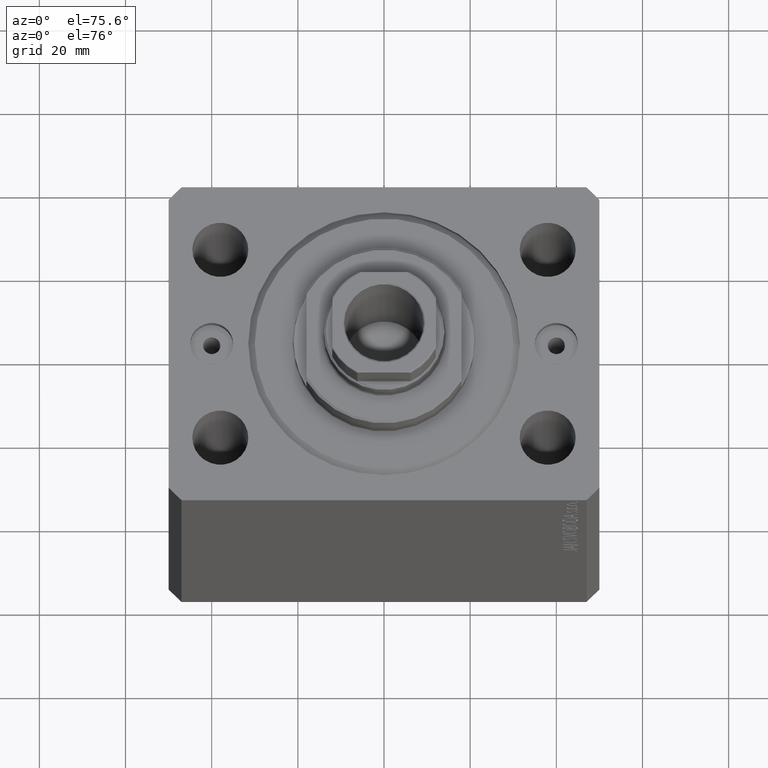
[diagram: clean part render]
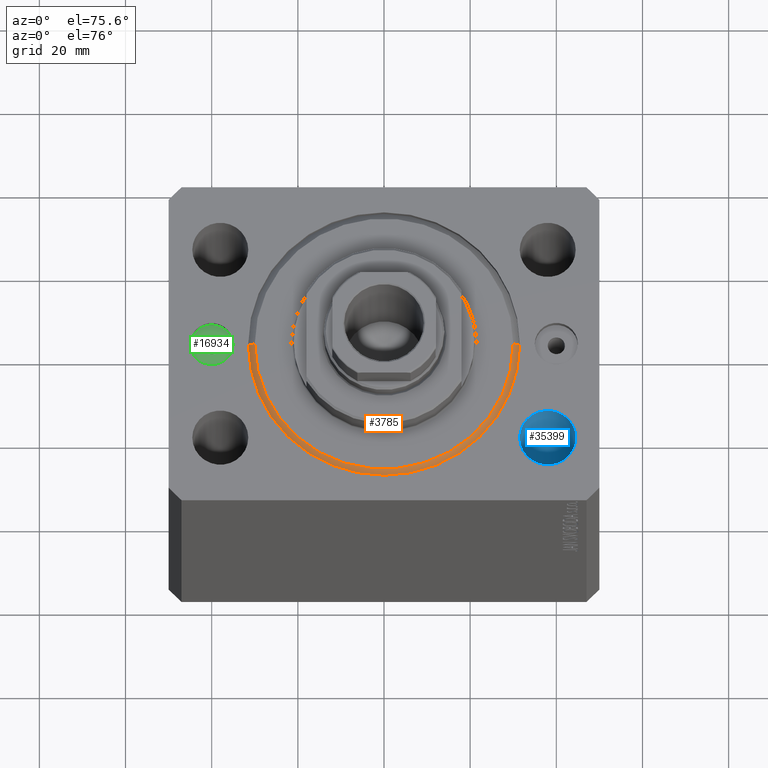
[diagram: same view with three faces highlighted in distinct colors, each labeled with its STEP entity id]
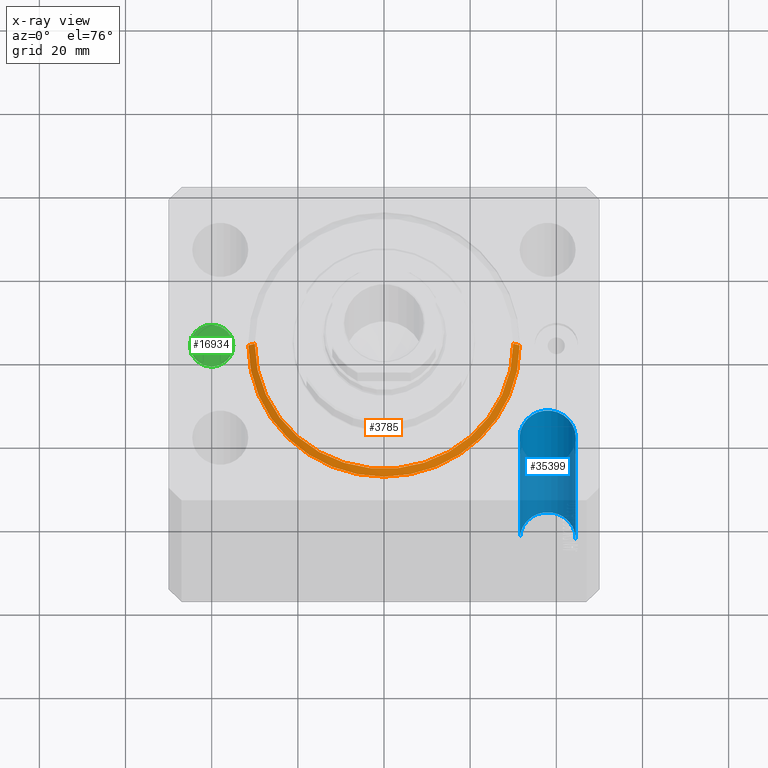
[diagram: x-ray of the same camera — body ghosted, the three highlighted faces saturated]
A machine part, auxiliary view with three faces highlighted in distinct colors.
The next image is the same camera in x-ray (body ghosted, the three faces saturated) — at least one of them is partly hidden behind the body in this view.
Their STEP definitions:

[orange] entity #3785 — the highlighted conical surface has half-angle 45 deg.
#422 = ORIENTED_EDGE ( 'NONE', *, *, #22882, .F. ) ;
#2426 = CARTESIAN_POINT ( 'NONE',  ( -31.50000000000000000, 3.857637417314162689E-15, 1.499999999999980460 ) ) ;
#3160 = VECTOR ( 'NONE', #11714, 1000.000000000000114 ) ;
#3760 = ORIENTED_EDGE ( 'NONE', *, *, #12518, .F. ) ;
#3785 = ADVANCED_FACE ( 'NONE', ( #37047 ), #31326, .T. ) ;
#4183 = DIRECTION ( 'NONE',  ( 1.000000000000000000, 0.000000000000000000, 0.000000000000000000 ) ) ;
#5551 = ORIENTED_EDGE ( 'NONE', *, *, #43586, .T. ) ;
#6010 = DIRECTION ( 'NONE',  ( 1.000000000000000000, 0.000000000000000000, 0.000000000000000000 ) ) ;
#6246 = CARTESIAN_POINT ( 'NONE',  ( 0.000000000000000000, 0.000000000000000000, 1.499999999999980460 ) ) ;
#6724 = VERTEX_POINT ( 'NONE', #18816 ) ;
#8728 = CARTESIAN_POINT ( 'NONE',  ( 30.00000000000002132, 0.000000000000000000, 0.000000000000000000 ) ) ;
#10468 = VERTEX_POINT ( 'NONE', #41654 ) ;
#11714 = DIRECTION ( 'NONE',  ( -0.7071067811865474617, 8.659560562354932858E-17, 0.7071067811865474617 ) ) ;
#11925 = AXIS2_PLACEMENT_3D ( 'NONE', #6246, #19960, #6010 ) ;
#12518 = EDGE_CURVE ( 'NONE', #13081, #6724, #39325, .T. ) ;
#13081 = VERTEX_POINT ( 'NONE', #8728 ) ;
#15137 = DIRECTION ( 'NONE',  ( 0.7071067811865474617, 0.000000000000000000, 0.7071067811865474617 ) ) ;
#18816 = CARTESIAN_POINT ( 'NONE',  ( -30.00000000000002132, 3.765788907378112117E-15, 0.000000000000000000 ) ) ;
#19960 = DIRECTION ( 'NONE',  ( -0.000000000000000000, -0.000000000000000000, 1.000000000000000000 ) ) ;
#20731 = ORIENTED_EDGE ( 'NONE', *, *, #32777, .F. ) ;
#21201 = CARTESIAN_POINT ( 'NONE',  ( -31.50000000000000000, 0.000000000000000000, 1.499999999999980460 ) ) ;
#21278 = VECTOR ( 'NONE', #15137, 1000.000000000000114 ) ;
#21727 = DIRECTION ( 'NONE',  ( 1.000000000000000000, 0.000000000000000000, 0.000000000000000000 ) ) ;
#21886 = LINE ( 'NONE', #35584, #21278 ) ;
#22882 = EDGE_CURVE ( 'NONE', #36184, #10468, #32309, .T. ) ;
#25538 = CARTESIAN_POINT ( 'NONE',  ( 0.000000000000000000, 0.000000000000000000, 0.000000000000000000 ) ) ;
#30836 = EDGE_LOOP ( 'NONE', ( #20731, #3760, #5551, #422 ) ) ;
#30860 = AXIS2_PLACEMENT_3D ( 'NONE', #34983, #38804, #4183 ) ;
#31326 = CONICAL_SURFACE ( 'NONE', #11925, 31.50000000000000000, 0.7853981633974482790 ) ;
#32309 = CIRCLE ( 'NONE', #30860, 31.50000000000000000 ) ;
#32777 = EDGE_CURVE ( 'NONE', #6724, #36184, #38915, .T. ) ;
#33591 = AXIS2_PLACEMENT_3D ( 'NONE', #25538, #39923, #21727 ) ;
#34983 = CARTESIAN_POINT ( 'NONE',  ( 0.000000000000000000, 0.000000000000000000, 1.499999999999980460 ) ) ;
#35584 = CARTESIAN_POINT ( 'NONE',  ( 31.50000000000000000, 0.000000000000000000, 1.499999999999980460 ) ) ;
#36184 = VERTEX_POINT ( 'NONE', #21201 ) ;
#37047 = FACE_OUTER_BOUND ( 'NONE', #30836, .T. ) ;
#38804 = DIRECTION ( 'NONE',  ( -0.000000000000000000, -0.000000000000000000, 1.000000000000000000 ) ) ;
#38915 = LINE ( 'NONE', #2426, #3160 ) ;
#39325 = CIRCLE ( 'NONE', #33591, 30.00000000000002132 ) ;
#39923 = DIRECTION ( 'NONE',  ( -0.000000000000000000, -0.000000000000000000, -1.000000000000000000 ) ) ;
#41654 = CARTESIAN_POINT ( 'NONE',  ( 31.50000000000000000, 3.857637417314162689E-15, 1.499999999999980460 ) ) ;
#43586 = EDGE_CURVE ( 'NONE', #13081, #10468, #21886, .T. ) ;

[blue] entity #35399 — the highlighted cylindrical surface (edge-blend (fillet) strip) has radius 6.5 mm, axis along (0, 0, 1).
#1184 = CIRCLE ( 'NONE', #30620, 6.499999999999999112 ) ;
#1559 = VERTEX_POINT ( 'NONE', #7904 ) ;
#3877 = EDGE_LOOP ( 'NONE', ( #28713, #16787, #30373, #10967 ) ) ;
#3878 = CYLINDRICAL_SURFACE ( 'NONE', #11266, 6.499999999999999112 ) ;
#3943 = EDGE_CURVE ( 'NONE', #1559, #40953, #34336, .T. ) ;
#7904 = CARTESIAN_POINT ( 'NONE',  ( 31.49999999999999289, -22.50000000000000000, -95.00000000000000000 ) ) ;
#8724 = DIRECTION ( 'NONE',  ( 0.000000000000000000, 0.000000000000000000, 1.000000000000000000 ) ) ;
#9173 = DIRECTION ( 'NONE',  ( 1.000000000000000000, 0.000000000000000000, 0.000000000000000000 ) ) ;
#9424 = DIRECTION ( 'NONE',  ( -0.000000000000000000, -0.000000000000000000, -1.000000000000000000 ) ) ;
#10967 = ORIENTED_EDGE ( 'NONE', *, *, #43805, .T. ) ;
#11266 = AXIS2_PLACEMENT_3D ( 'NONE', #24582, #14883, #31771 ) ;
#11757 = EDGE_CURVE ( 'NONE', #1559, #43203, #32862, .T. ) ;
#12807 = DIRECTION ( 'NONE',  ( 1.000000000000000000, 0.000000000000000000, 0.000000000000000000 ) ) ;
#13471 = AXIS2_PLACEMENT_3D ( 'NONE', #33042, #9424, #12807 ) ;
#14883 = DIRECTION ( 'NONE',  ( -0.000000000000000000, -0.000000000000000000, 1.000000000000000000 ) ) ;
#15585 = LINE ( 'NONE', #29303, #33071 ) ;
#16363 = CARTESIAN_POINT ( 'NONE',  ( 44.49999999999999289, -22.50000000000000000, -95.00000000000000000 ) ) ;
#16787 = ORIENTED_EDGE ( 'NONE', *, *, #11757, .T. ) ;
#17253 = DIRECTION ( 'NONE',  ( -0.000000000000000000, -0.000000000000000000, 1.000000000000000000 ) ) ;
#24582 = CARTESIAN_POINT ( 'NONE',  ( 37.99999999999999289, -22.50000000000000000, -113.3847763108502278 ) ) ;
#24877 = VECTOR ( 'NONE', #17253, 1000.000000000000000 ) ;
#25559 = EDGE_CURVE ( 'NONE', #43203, #30991, #15585, .T. ) ;
#25932 = DIRECTION ( 'NONE',  ( -0.000000000000000000, -0.000000000000000000, 1.000000000000000000 ) ) ;
#28713 = ORIENTED_EDGE ( 'NONE', *, *, #3943, .F. ) ;
#29303 = CARTESIAN_POINT ( 'NONE',  ( 44.49999999999999289, -22.50000000000000000, -113.3847763108502278 ) ) ;
#30373 = ORIENTED_EDGE ( 'NONE', *, *, #25559, .T. ) ;
#30620 = AXIS2_PLACEMENT_3D ( 'NONE', #33014, #8724, #9173 ) ;
#30984 = CARTESIAN_POINT ( 'NONE',  ( 31.49999999999999289, -22.50000000000000000, 0.000000000000000000 ) ) ;
#30991 = VERTEX_POINT ( 'NONE', #35225 ) ;
#31183 = CARTESIAN_POINT ( 'NONE',  ( 31.49999999999999289, -22.50000000000000000, -113.3847763108502278 ) ) ;
#31771 = DIRECTION ( 'NONE',  ( 1.000000000000000000, 0.000000000000000000, 0.000000000000000000 ) ) ;
#32862 = CIRCLE ( 'NONE', #13471, 6.499999999999999112 ) ;
#33014 = CARTESIAN_POINT ( 'NONE',  ( 37.99999999999999289, -22.50000000000000000, 0.000000000000000000 ) ) ;
#33042 = CARTESIAN_POINT ( 'NONE',  ( 37.99999999999999289, -22.50000000000000000, -95.00000000000000000 ) ) ;
#33071 = VECTOR ( 'NONE', #25932, 1000.000000000000000 ) ;
#34336 = LINE ( 'NONE', #31183, #24877 ) ;
#35225 = CARTESIAN_POINT ( 'NONE',  ( 44.49999999999999289, -22.50000000000000000, 0.000000000000000000 ) ) ;
#35336 = FACE_OUTER_BOUND ( 'NONE', #3877, .T. ) ;
#35399 = ADVANCED_FACE ( 'NONE', ( #35336 ), #3878, .F. ) ;
#40953 = VERTEX_POINT ( 'NONE', #30984 ) ;
#43203 = VERTEX_POINT ( 'NONE', #16363 ) ;
#43805 = EDGE_CURVE ( 'NONE', #30991, #40953, #1184, .T. ) ;

[green] entity #16934 — the highlighted planar face has unit normal (0, 0, 1).
#612 = DIRECTION ( 'NONE',  ( 1.000000000000000000, 0.000000000000000000, 0.000000000000000000 ) ) ;
#630 = CARTESIAN_POINT ( 'NONE',  ( -38.00000000000000000, 0.000000000000000000, -1.899999999999999911 ) ) ;
#1422 = CARTESIAN_POINT ( 'NONE',  ( -40.00000000000000000, 0.000000000000000000, -1.899999999999999911 ) ) ;
#1655 = CARTESIAN_POINT ( 'NONE',  ( -40.00000000000000000, 0.000000000000000000, -1.899999999999999911 ) ) ;
#3020 = EDGE_CURVE ( 'NONE', #35873, #28201, #21241, .T. ) ;
#3467 = FACE_BOUND ( 'NONE', #32980, .T. ) ;
#4469 = CARTESIAN_POINT ( 'NONE',  ( -42.00000000000000000, 2.449293598294711345E-16, -1.899999999999999911 ) ) ;
#4501 = EDGE_CURVE ( 'NONE', #31094, #25996, #4659, .T. ) ;
#4659 = CIRCLE ( 'NONE', #34905, 4.999999999999997335 ) ;
#7451 = DIRECTION ( 'NONE',  ( 0.000000000000000000, 0.000000000000000000, 1.000000000000000000 ) ) ;
#8469 = CARTESIAN_POINT ( 'NONE',  ( -40.00000000000000000, 0.000000000000000000, -1.899999999999999911 ) ) ;
#9723 = ORIENTED_EDGE ( 'NONE', *, *, #4501, .T. ) ;
#11861 = EDGE_LOOP ( 'NONE', ( #9723, #29763 ) ) ;
#13402 = CARTESIAN_POINT ( 'NONE',  ( -35.00000000000000000, 0.000000000000000000, -1.899999999999999911 ) ) ;
#15489 = AXIS2_PLACEMENT_3D ( 'NONE', #8469, #28712, #36561 ) ;
#16934 = ADVANCED_FACE ( 'NONE', ( #3467, #30899 ), #41225, .T. ) ;
#19325 = EDGE_CURVE ( 'NONE', #25996, #31094, #43804, .T. ) ;
#21173 = DIRECTION ( 'NONE',  ( 1.000000000000000000, 0.000000000000000000, 0.000000000000000000 ) ) ;
#21241 = CIRCLE ( 'NONE', #15489, 2.000000000000001776 ) ;
#21467 = AXIS2_PLACEMENT_3D ( 'NONE', #1422, #35802, #35358 ) ;
#22168 = ORIENTED_EDGE ( 'NONE', *, *, #40232, .F. ) ;
#25996 = VERTEX_POINT ( 'NONE', #34314 ) ;
#28201 = VERTEX_POINT ( 'NONE', #4469 ) ;
#28712 = DIRECTION ( 'NONE',  ( 0.000000000000000000, 0.000000000000000000, 1.000000000000000000 ) ) ;
#28932 = ORIENTED_EDGE ( 'NONE', *, *, #3020, .F. ) ;
#29763 = ORIENTED_EDGE ( 'NONE', *, *, #19325, .T. ) ;
#30899 = FACE_OUTER_BOUND ( 'NONE', #11861, .T. ) ;
#31094 = VERTEX_POINT ( 'NONE', #13402 ) ;
#31963 = CIRCLE ( 'NONE', #32673, 2.000000000000001776 ) ;
#32673 = AXIS2_PLACEMENT_3D ( 'NONE', #1655, #32918, #39423 ) ;
#32918 = DIRECTION ( 'NONE',  ( 0.000000000000000000, 0.000000000000000000, 1.000000000000000000 ) ) ;
#32980 = EDGE_LOOP ( 'NONE', ( #28932, #22168 ) ) ;
#34314 = CARTESIAN_POINT ( 'NONE',  ( -45.00000000000000000, 6.123233995736762338E-16, -1.899999999999999911 ) ) ;
#34905 = AXIS2_PLACEMENT_3D ( 'NONE', #38036, #7451, #21173 ) ;
#35358 = DIRECTION ( 'NONE',  ( 1.000000000000000000, 0.000000000000000000, -0.000000000000000000 ) ) ;
#35656 = CARTESIAN_POINT ( 'NONE',  ( -40.00000000000000000, 0.000000000000000000, -1.899999999999999911 ) ) ;
#35802 = DIRECTION ( 'NONE',  ( 0.000000000000000000, 0.000000000000000000, 1.000000000000000000 ) ) ;
#35873 = VERTEX_POINT ( 'NONE', #630 ) ;
#36561 = DIRECTION ( 'NONE',  ( 1.000000000000000000, 0.000000000000000000, 0.000000000000000000 ) ) ;
#38036 = CARTESIAN_POINT ( 'NONE',  ( -40.00000000000000000, 0.000000000000000000, -1.899999999999999911 ) ) ;
#38603 = DIRECTION ( 'NONE',  ( 0.000000000000000000, 0.000000000000000000, 1.000000000000000000 ) ) ;
#39423 = DIRECTION ( 'NONE',  ( 1.000000000000000000, 0.000000000000000000, 0.000000000000000000 ) ) ;
#40232 = EDGE_CURVE ( 'NONE', #28201, #35873, #31963, .T. ) ;
#41225 = PLANE ( 'NONE',  #21467 ) ;
#43804 = CIRCLE ( 'NONE', #44515, 4.999999999999997335 ) ;
#44515 = AXIS2_PLACEMENT_3D ( 'NONE', #35656, #38603, #612 ) ;